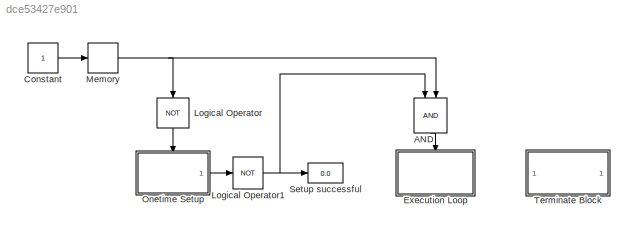
MODEL slx_dce53427e901
KIND model
CONFIG AbsTol = auto
CONFIG EnableMultiTasking = off
CONFIG FixedStep = 0.01
CONFIG MaxStep = auto
CONFIG MinStep = auto
CONFIG RelTol = 1e-3
CONFIG SampleTimeConstraint = Unconstrained
CONFIG Solver = FixedStepAuto
CONFIG SolverName = FixedStepAuto
CONFIG StartTime = 0.0
CONFIG StopTime = inf
BLOCK [Logic] AND
  AllPortsSameDT = off
  OutDataTypeStr = boolean
  Ports = [2, 1]
BLOCK [Constant] Constant
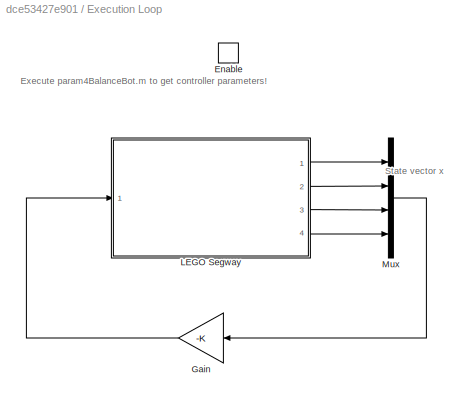
BLOCK [SubSystem] Execution Loop
  Ports = [0, 0, 1]
  RequestExecContextInheritance = off
BLOCK [EnablePort] Execution Loop/Enable
  Ports = []
BLOCK [Gain] Execution Loop/Gain
  Gain = -K
  Multiplication = Matrix(K*u) (u vector)
  OutDataTypeStr = Inherit: Inherit via internal rule
  ParamDataTypeStr = Inherit: Inherit via internal rule
  SaturateOnIntegerOverflow = off
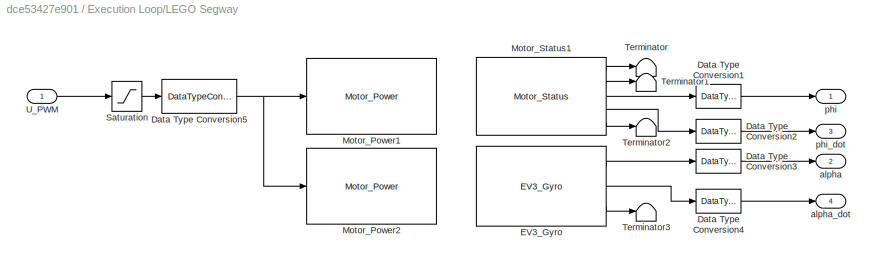
BLOCK [SubSystem] Execution Loop/LEGO Segway
  Ports = [1, 4]
  RequestExecContextInheritance = off
BLOCK [DataTypeConversion] Execution Loop/LEGO Segway/Data Type Conversion1
  OutDataTypeStr = int32
  RndMeth = Floor
  SaturateOnIntegerOverflow = off
BLOCK [DataTypeConversion] Execution Loop/LEGO Segway/Data Type Conversion2
  OutDataTypeStr = int32
  RndMeth = Floor
  SaturateOnIntegerOverflow = off
BLOCK [DataTypeConversion] Execution Loop/LEGO Segway/Data Type Conversion3
  OutDataTypeStr = int32
  RndMeth = Floor
  SaturateOnIntegerOverflow = off
BLOCK [DataTypeConversion] Execution Loop/LEGO Segway/Data Type Conversion4
  OutDataTypeStr = int32
  RndMeth = Floor
  SaturateOnIntegerOverflow = off
BLOCK [DataTypeConversion] Execution Loop/LEGO Segway/Data Type Conversion5
  OutDataTypeStr = int8
  RndMeth = Floor
  SaturateOnIntegerOverflow = off
BLOCK [Reference] Execution Loop/LEGO Segway/EV3_Gyro  REF=BrickPi/EV3_Gyro
  Ports = [0, 3]
  SourceBlock = BrickPi/EV3_Gyro
BLOCK [Reference] Execution Loop/LEGO Segway/Motor_Power1  REF=BrickPi/Motor_Power
  Ports = [1]
  SourceBlock = BrickPi/Motor_Power
BLOCK [Reference] Execution Loop/LEGO Segway/Motor_Power2  REF=BrickPi/Motor_Power
  Ports = [1]
  SourceBlock = BrickPi/Motor_Power
BLOCK [Reference] Execution Loop/LEGO Segway/Motor_Status1  REF=BrickPi/Motor_Status
  Ports = [0, 5]
  SourceBlock = BrickPi/Motor_Status
BLOCK [Saturate] Execution Loop/LEGO Segway/Saturation
  InputPortMap = u0
  LowerLimit = -100
  Ports = [1, 1]
  UpperLimit = 100
BLOCK [Terminator] Execution Loop/LEGO Segway/Terminator
BLOCK [Terminator] Execution Loop/LEGO Segway/Terminator1
BLOCK [Terminator] Execution Loop/LEGO Segway/Terminator2
BLOCK [Terminator] Execution Loop/LEGO Segway/Terminator3
BLOCK [Inport] Execution Loop/LEGO Segway/U_PWM
  IconDisplay = Port number
BLOCK [Outport] Execution Loop/LEGO Segway/alpha
  IconDisplay = Port number
  Port = 2
BLOCK [Outport] Execution Loop/LEGO Segway/alpha_dot
  IconDisplay = Port number
  Port = 4
BLOCK [Outport] Execution Loop/LEGO Segway/phi
  IconDisplay = Port number
BLOCK [Outport] Execution Loop/LEGO Segway/phi_dot
  IconDisplay = Port number
  Port = 3
BLOCK [Mux] Execution Loop/Mux
  DisplayOption = bar
  Ports = [4, 1]
BLOCK [Logic] Logical Operator
  AllPortsSameDT = off
  Operator = NOT
  OutDataTypeStr = boolean
  Ports = [1, 1]
BLOCK [Logic] Logical Operator1
  AllPortsSameDT = off
  Operator = NOT
  OutDataTypeStr = boolean
  Ports = [1, 1]
BLOCK [Memory] Memory
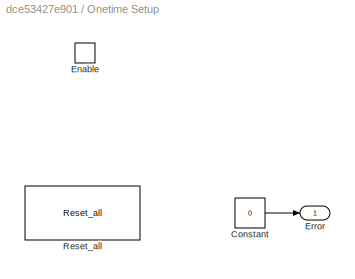
BLOCK [SubSystem] Onetime Setup
  Ports = [0, 1, 1]
  RequestExecContextInheritance = off
BLOCK [Constant] Onetime Setup/Constant
  Value = 0
BLOCK [EnablePort] Onetime Setup/Enable
  Ports = []
BLOCK [Outport] Onetime Setup/Error
  IconDisplay = Port number
  InitialOutput = [1]
BLOCK [Reference] Onetime Setup/Reset_all  REF=BrickPi/Reset_all
  Ports = [0, 1]
  SourceBlock = BrickPi/Reset_all
BLOCK [Display] Setup successful
  Decimation = 1
  Ports = [1]
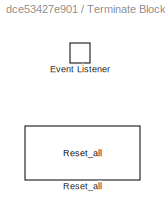
BLOCK [SubSystem] Terminate Block
  Ports = []
  RequestExecContextInheritance = off
  TreatAsAtomicUnit = on
BLOCK [EventListener] Terminate Block/Event Listener
  DisableCoverage = on
  EventName = reset
  EventType = Terminate
BLOCK [Reference] Terminate Block/Reset_all  REF=BrickPi/Reset_all
  Ports = [0, 1]
  SourceBlock = BrickPi/Reset_all
ANNOTATION Execution Loop: Execute param4BalanceBot.m to get controller parameters!
ANNOTATION Execution Loop: State vector x
LINE AND:1 -> Execution Loop:enable
LINE Constant:1 -> Memory:1
LINE Execution Loop/Gain:1 -> Execution Loop/LEGO Segway:1
LINE Execution Loop/LEGO Segway/Data Type Conversion1:1 -> Execution Loop/LEGO Segway/phi:1
LINE Execution Loop/LEGO Segway/Data Type Conversion2:1 -> Execution Loop/LEGO Segway/phi_dot:1
LINE Execution Loop/LEGO Segway/Data Type Conversion3:1 -> Execution Loop/LEGO Segway/alpha:1
LINE Execution Loop/LEGO Segway/Data Type Conversion4:1 -> Execution Loop/LEGO Segway/alpha_dot:1
NET Execution Loop/LEGO Segway/Data Type Conversion5:1 -> Execution Loop/LEGO Segway/Motor_Power1:1, Execution Loop/LEGO Segway/Motor_Power2:1
LINE Execution Loop/LEGO Segway/EV3_Gyro:1 -> Execution Loop/LEGO Segway/Data Type Conversion3:1
LINE Execution Loop/LEGO Segway/EV3_Gyro:2 -> Execution Loop/LEGO Segway/Data Type Conversion4:1
LINE Execution Loop/LEGO Segway/EV3_Gyro:3 -> Execution Loop/LEGO Segway/Terminator3:1
LINE Execution Loop/LEGO Segway/Motor_Status1:1 -> Execution Loop/LEGO Segway/Terminator:1
LINE Execution Loop/LEGO Segway/Motor_Status1:2 -> Execution Loop/LEGO Segway/Terminator1:1
LINE Execution Loop/LEGO Segway/Motor_Status1:3 -> Execution Loop/LEGO Segway/Data Type Conversion1:1
LINE Execution Loop/LEGO Segway/Motor_Status1:4 -> Execution Loop/LEGO Segway/Data Type Conversion2:1
LINE Execution Loop/LEGO Segway/Motor_Status1:5 -> Execution Loop/LEGO Segway/Terminator2:1
LINE Execution Loop/LEGO Segway/Saturation:1 -> Execution Loop/LEGO Segway/Data Type Conversion5:1
LINE Execution Loop/LEGO Segway/U_PWM:1 -> Execution Loop/LEGO Segway/Saturation:1
LINE Execution Loop/LEGO Segway:1 -> Execution Loop/Mux:1
LINE Execution Loop/LEGO Segway:2 -> Execution Loop/Mux:2
LINE Execution Loop/LEGO Segway:3 -> Execution Loop/Mux:3
LINE Execution Loop/LEGO Segway:4 -> Execution Loop/Mux:4
LINE Execution Loop/Mux:1 -> Execution Loop/Gain:1
NET Logical Operator1:1 -> AND:1, Setup successful:1
LINE Logical Operator:1 -> Onetime Setup:enable
NET Memory:1 -> AND:2, Logical Operator:1
LINE Onetime Setup/Constant:1 -> Onetime Setup/Error:1
LINE Onetime Setup:1 -> Logical Operator1:1
note: NET lines group one-source signal fan-out (src -> all destinations, sorted); 1:1 wires keep LINE
